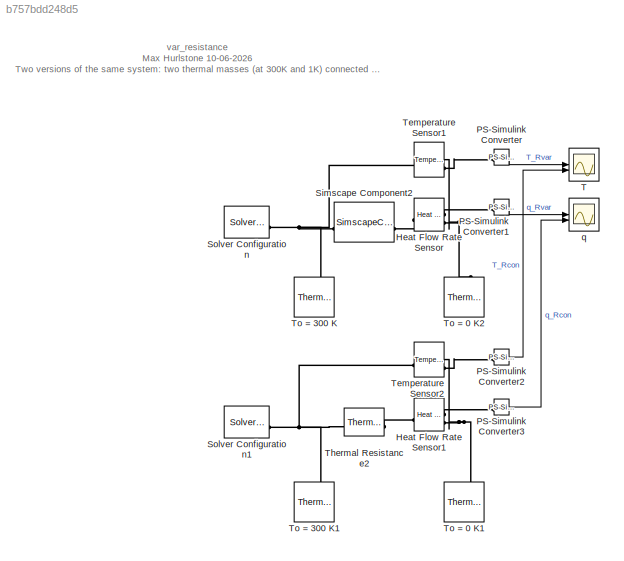
MODEL slx_b757bdd248d5
KIND model
CONFIG AbsTol = auto
CONFIG EnableMultiTasking = off
CONFIG FixedStep = auto
CONFIG MaxStep = auto
CONFIG MinStep = auto
CONFIG RelTol = 1e-3
CONFIG SampleTimeConstraint = Unconstrained
CONFIG SolverName = VariableStepAuto
CONFIG StartTime = 0.0
CONFIG StopTime = 100
BLOCK [Reference] Heat Flow Rate Sensor  REF=fl_lib/Thermal/Thermal Sensors/Heat Flow Rate
Sensor
  SourceBlock = fl_lib/Thermal/Thermal Sensors/Heat Flow Rate\nSensor
  SourceType = Heat Flow Rate\nSensor
BLOCK [Reference] Heat Flow Rate Sensor1  REF=fl_lib/Thermal/Thermal Sensors/Heat Flow Rate
Sensor
  SourceBlock = fl_lib/Thermal/Thermal Sensors/Heat Flow Rate\nSensor
  SourceType = Heat Flow Rate\nSensor
BLOCK [Reference] PS-Simulink Converter  REF=nesl_utility/PS-Simulink
Converter
  SourceBlock = nesl_utility/PS-Simulink\nConverter
  SourceType = PS-Simulink\nConverter
BLOCK [Reference] PS-Simulink Converter1  REF=nesl_utility/PS-Simulink
Converter
  SourceBlock = nesl_utility/PS-Simulink\nConverter
  SourceType = PS-Simulink\nConverter
BLOCK [Reference] PS-Simulink Converter2  REF=nesl_utility/PS-Simulink
Converter
  SourceBlock = nesl_utility/PS-Simulink\nConverter
  SourceType = PS-Simulink\nConverter
BLOCK [Reference] PS-Simulink Converter3  REF=nesl_utility/PS-Simulink
Converter
  SourceBlock = nesl_utility/PS-Simulink\nConverter
  SourceType = PS-Simulink\nConverter
BLOCK [SimscapeComponentBlock] Simscape Component2
  ClassName = var_resistance
  ComponentPath = DLSimscape.Thermal.var_resistance
  ComponentVariantNames = ["var_resistance"]
  ComponentVariants = ["DLSimscape.Thermal.var_resistance"]
  CopyFcn = simscape.sscblock.internal.componentBlockCallback(gcbh,'COPY')
  InternalSimscapePortConfiguration = {"Bottom":[],"Left":[{"id":"A","label":"A","type":"foundation.thermal.thermal"}],"Right":[{"id":"B","label":"B","type":"foundation.thermal.thermal"}],"Top":[]}
  MaskType = Variable Thermal Resistance
  PreCopyFcn = simscape.sscblock.internal.componentBlockCallback(gcbh,'PRECOPY')
  PreDeleteFcn = simscape.sscblock.internal.componentBlockCallback(gcbh,'PREDELETE')
  Q = 0
  Q_nominal_specify = off
  Q_nominal_unit = W
  Q_nominal_value = 1
  Q_priority = None
  Q_specify = off
  Q_unit = W
  SchemaVersion = 1
  SourceFile = DLSimscape.Thermal.var_resistance
  T = 0
  T_nominal_specify = off
  T_nominal_unit = K
  T_nominal_value = 1
  T_priority = None
  T_specify = off
  T_unit = K
  resistance_vec = [0.1 1 1]*0.01
  resistance_vec_conf = compiletime
  resistance_vec_unit = K/W
  tvec = [0 250 300]
  tvec_conf = compiletime
  tvec_unit = K
BLOCK [Reference] Solver Configuration  REF=nesl_utility/Solver
Configuration
  SourceBlock = nesl_utility/Solver\nConfiguration
  SourceType = Solver\nConfiguration
BLOCK [Reference] Solver Configuration1  REF=nesl_utility/Solver
Configuration
  SourceBlock = nesl_utility/Solver\nConfiguration
  SourceType = Solver\nConfiguration
BLOCK [Scope] T
  ActiveDisplayYMaximum = 336.375
  ActiveDisplayYMinimum = -37.375000000000028
  Floating = off
  GraphicalSettings = {"Style":{"BackgroundColor":[0.12941176470588237,0.12941176470588237,0.12941176470588237],"AxesColor":[0.07058823529411765,0.07058823529411765,0.07058823529411765],"LabelsColor":[0.8509803921568627,0.8509803921568627,0.8509803921568627],"PreserveColors":false,"Visible":[true,true],"LineStyle":["-","-"],"LineWidth":[1.5,1.5],"BarWidth":[0.9,0.9],"LineColor":["auto","auto"],"LineFaceAlpha":[1,1],"Li...<+2062ch>
  LayoutDimensionsString = [1 1]
  MultipleDisplayCache = [{"MaxYLimMag":336.375,"MaxYLimReal":336.375,"MinYLimMag":0,"MinYLimReal":-37.375000000000028,"PlotAsMagnitudePhase":false,"ShowGrid":true,"ShowLegend":true,"Title":"%<SignalLabel>","YLabel":""}]
  NumInputPorts = 2
  ScopeFrameLocation = container
  ShowLegend = on
  WasSavedAsWebScope = on
  WindowPosition = [1248.000000,374.000000,1280.000000,768.000000,]
BLOCK [Reference] Temperature Sensor1  REF=fl_lib/Thermal/Thermal Sensors/Temperature Sensor
  SourceBlock = fl_lib/Thermal/Thermal Sensors/Temperature Sensor
  SourceType = Temperature Sensor
BLOCK [Reference] Temperature Sensor2  REF=fl_lib/Thermal/Thermal Sensors/Temperature Sensor
  SourceBlock = fl_lib/Thermal/Thermal Sensors/Temperature Sensor
  SourceType = Temperature Sensor
BLOCK [Reference] Thermal Resistance2  REF=fl_lib/Thermal/Thermal Elements/Thermal Resistance
  SourceBlock = fl_lib/Thermal/Thermal Elements/Thermal Resistance
  SourceType = Thermal Resistance
BLOCK [Reference] To = 0 K1  REF=fl_lib/Thermal/Thermal Elements/Thermal Mass
  SourceBlock = fl_lib/Thermal/Thermal Elements/Thermal Mass
  SourceType = Thermal Mass
BLOCK [Reference] To = 0 K2  REF=fl_lib/Thermal/Thermal Elements/Thermal Mass
  SourceBlock = fl_lib/Thermal/Thermal Elements/Thermal Mass
  SourceType = Thermal Mass
BLOCK [Reference] To = 300 K  REF=fl_lib/Thermal/Thermal Elements/Thermal Mass
  SourceBlock = fl_lib/Thermal/Thermal Elements/Thermal Mass
  SourceType = Thermal Mass
BLOCK [Reference] To = 300 K1  REF=fl_lib/Thermal/Thermal Elements/Thermal Mass
  SourceBlock = fl_lib/Thermal/Thermal Elements/Thermal Mass
  SourceType = Thermal Mass
BLOCK [Scope] q
  ActiveDisplayYMaximum = 44929.064280515988
  ActiveDisplayYMinimum = -4992.1183406616356
  DataLoggingVariableName = ScopeData1
  Floating = off
  GraphicalSettings = {"Style":{"BackgroundColor":[0.12941176470588237,0.12941176470588237,0.12941176470588237],"AxesColor":[0.07058823529411765,0.07058823529411765,0.07058823529411765],"LabelsColor":[0.8509803921568627,0.8509803921568627,0.8509803921568627],"PreserveColors":false,"Visible":[true,true],"LineStyle":["-","-"],"LineWidth":[1.5,1.5],"BarWidth":[0.9,0.9],"LineColor":["auto","auto"],"LineFaceAlpha":[1,1],"Li...<+2104ch>
  LayoutDimensionsString = [1 1]
  MultipleDisplayCache = [{"MaxYLimMag":44929.064280515988,"MaxYLimReal":44929.064280515988,"MinYLimMag":0,"MinYLimReal":-4992.1183406616356,"PlotAsMagnitudePhase":false,"ShowGrid":true,"ShowLegend":false,"Title":"%<SignalLabel>","YLabel":""}]
  NumInputPorts = 2
  ScopeFrameLocation = container
  WasSavedAsWebScope = on
  WindowPosition = [1248.000000,374.000000,1280.000000,768.000000,]
ANNOTATION (root): var_resistance Max Hurlstone 10-06-2026 Two versions of the same system: two thermal masses (at 300K and 1K) connected by a thermal resistance. The bottom one has a varying thermal resistance. Examine the scopes to see the difference in temperature vs time and flux vs time.
LINE PS-Simulink Converter1:1 -> q:1
LINE PS-Simulink Converter2:1 -> T:2
LINE PS-Simulink Converter3:1 -> q:2
LINE PS-Simulink Converter:1 -> T:1
PLINE Heat Flow Rate Sensor1:LConn1 -- Thermal Resistance2:RConn1
PLINE Heat Flow Rate Sensor1:RConn1 -- PS-Simulink Converter3:LConn1
PNET net1: Heat Flow Rate Sensor1:RConn2 -- Temperature Sensor2:RConn1 -- To = 0 K1:LConn1
PLINE Heat Flow Rate Sensor:LConn1 -- Simscape Component2:RConn1
PLINE Heat Flow Rate Sensor:RConn1 -- PS-Simulink Converter1:LConn1
PNET net2: Heat Flow Rate Sensor:RConn2 -- Temperature Sensor1:RConn1 -- To = 0 K2:LConn1
PLINE PS-Simulink Converter2:LConn1 -- Temperature Sensor2:RConn2
PLINE PS-Simulink Converter:LConn1 -- Temperature Sensor1:RConn2
PNET net3: Simscape Component2:LConn1 -- Solver Configuration:RConn1 -- Temperature Sensor1:LConn1 -- To = 300 K:LConn1
PNET net4: Solver Configuration1:RConn1 -- Temperature Sensor2:LConn1 -- Thermal Resistance2:LConn1 -- To = 300 K1:LConn1
note: PNET lines group multi-terminal physical nets as a canonical sorted terminal list (undirected conserving connections); 2-terminal nets keep the pairwise PLINE form
